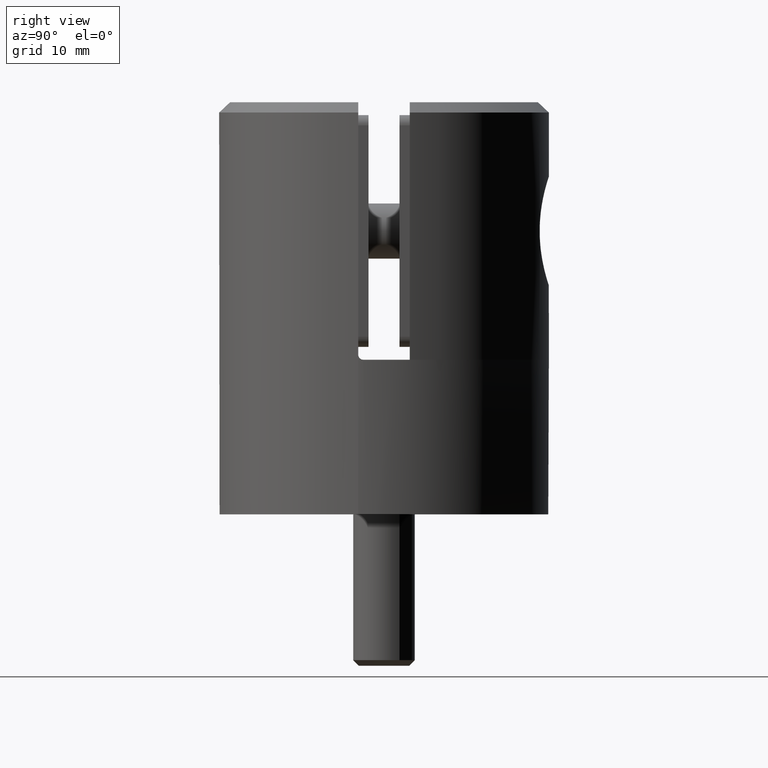
[diagram: clean part render]
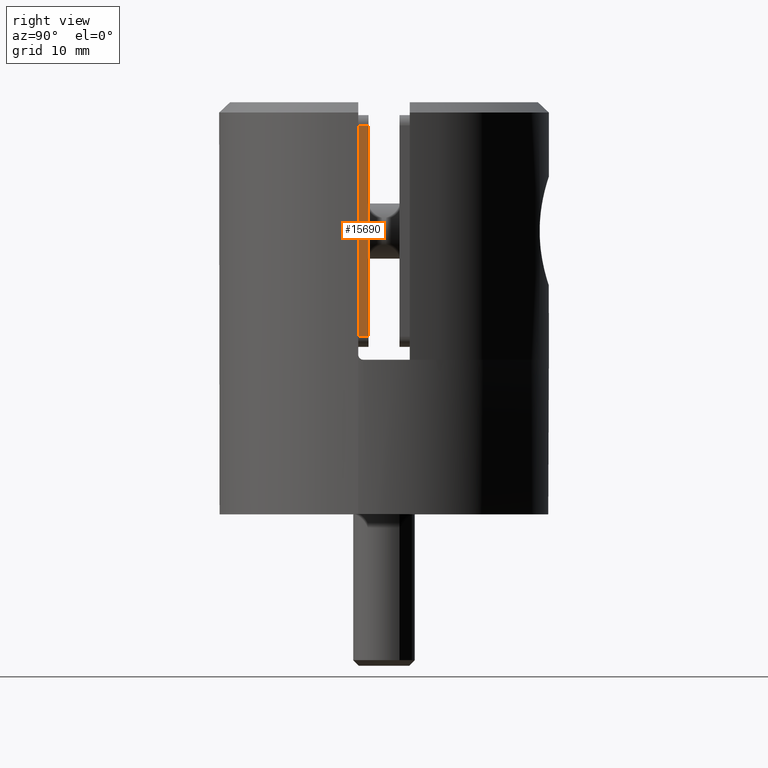
[diagram: same view with one face highlighted and labeled with its STEP entity id]
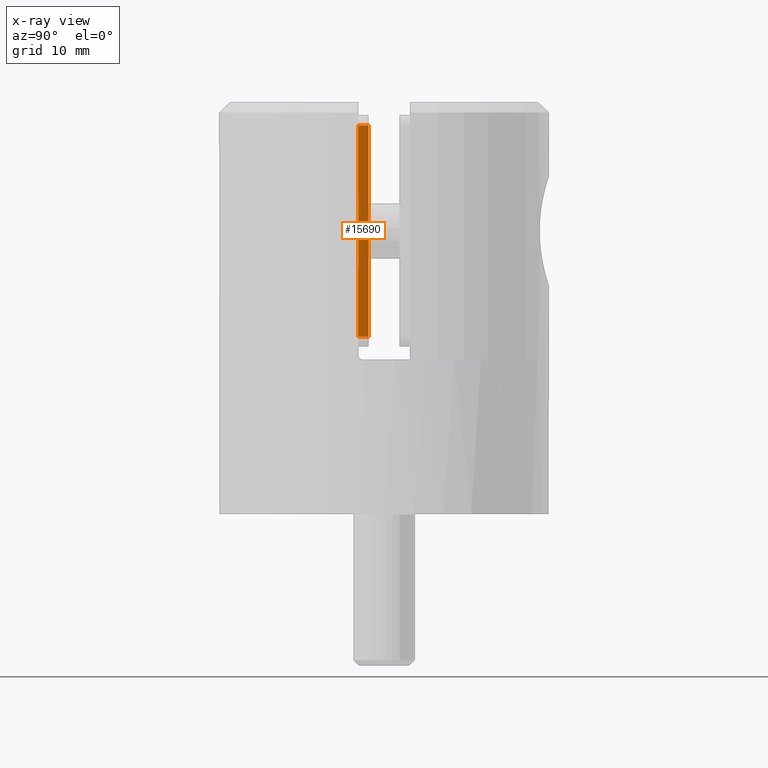
[diagram: x-ray of the same camera — body ghosted, the highlighted face saturated]
A machine part, right view. The second image highlights one B-rep face of the part: STEP entity #15690.
The next image is the same camera in x-ray: the body ghosted, the highlighted face saturated — about 0% of this face is hidden behind the body in this view.
In plain terms, the highlighted planar face has unit normal (-1, 0, -0).
Its self-contained STEP definition (entity closure, byte-faithful):
#1034 = CARTESIAN_POINT ( 'NONE',  ( -14.75000000000000000, 1.000000000000000000, 10.24999999999999822 ) ) ;
#1133 = LINE ( 'NONE', #1918, #14466 ) ;
#1153 = CARTESIAN_POINT ( 'NONE',  ( -14.75000000000000355, 1.000000000000000000, -10.24999999999999289 ) ) ;
#1590 = EDGE_CURVE ( 'NONE', #17785, #17684, #11062, .T. ) ;
#1645 = EDGE_CURVE ( 'NONE', #9091, #8863, #11771, .T. ) ;
#1918 = CARTESIAN_POINT ( 'NONE',  ( -14.75000000000000000, 1.000000000000000000, 11.24999999999999822 ) ) ;
#2743 = CARTESIAN_POINT ( 'NONE',  ( -14.75000000000000355, 0.000000000000000000, -10.24999999999998579 ) ) ;
#3113 = CARTESIAN_POINT ( 'NONE',  ( -14.75000000000000000, 0.000000000000000000, 11.24999999999999822 ) ) ;
#3540 = ORIENTED_EDGE ( 'NONE', *, *, #4423, .T. ) ;
#3647 = CARTESIAN_POINT ( 'NONE',  ( -14.75000000000000355, 1.000000000000000000, -10.24999999999998579 ) ) ;
#3932 = DIRECTION ( 'NONE',  ( -1.541976423090496373E-16, 0.000000000000000000, -1.000000000000000000 ) ) ;
#4157 = VECTOR ( 'NONE', #5808, 1000.000000000000000 ) ;
#4161 = DIRECTION ( 'NONE',  ( -0.000000000000000000, 1.000000000000000000, -0.000000000000000000 ) ) ;
#4370 = CARTESIAN_POINT ( 'NONE',  ( -14.75000000000000000, 1.000000000000000000, 10.24999999999999822 ) ) ;
#4423 = EDGE_CURVE ( 'NONE', #8863, #17785, #4931, .T. ) ;
#4625 = CARTESIAN_POINT ( 'NONE',  ( -14.75000000000000000, 0.000000000000000000, 10.24999999999999822 ) ) ;
#4917 = ORIENTED_EDGE ( 'NONE', *, *, #1590, .T. ) ;
#4931 = LINE ( 'NONE', #3113, #16371 ) ;
#5450 = ORIENTED_EDGE ( 'NONE', *, *, #1645, .T. ) ;
#5808 = DIRECTION ( 'NONE',  ( 0.000000000000000000, -1.000000000000000000, 0.000000000000000000 ) ) ;
#8863 = VERTEX_POINT ( 'NONE', #2743 ) ;
#9091 = VERTEX_POINT ( 'NONE', #3647 ) ;
#10710 = FACE_OUTER_BOUND ( 'NONE', #18970, .T. ) ;
#11062 = LINE ( 'NONE', #1034, #18924 ) ;
#11771 = LINE ( 'NONE', #1153, #4157 ) ;
#12271 = DIRECTION ( 'NONE',  ( 1.541976423090496126E-16, -0.000000000000000000, 1.000000000000000000 ) ) ;
#14466 = VECTOR ( 'NONE', #16975, 1000.000000000000000 ) ;
#15690 = ADVANCED_FACE ( 'NONE', ( #10710 ), #19030, .F. ) ;
#16371 = VECTOR ( 'NONE', #12271, 1000.000000000000000 ) ;
#16975 = DIRECTION ( 'NONE',  ( 1.541976423090496126E-16, -0.000000000000000000, 1.000000000000000000 ) ) ;
#17448 = CARTESIAN_POINT ( 'NONE',  ( -14.75000000000000000, 1.000000000000000000, 11.24999999999999822 ) ) ;
#17573 = DIRECTION ( 'NONE',  ( 1.000000000000000000, 0.000000000000000000, -1.541976423090496373E-16 ) ) ;
#17684 = VERTEX_POINT ( 'NONE', #4370 ) ;
#17785 = VERTEX_POINT ( 'NONE', #4625 ) ;
#17872 = ORIENTED_EDGE ( 'NONE', *, *, #18699, .F. ) ;
#18699 = EDGE_CURVE ( 'NONE', #9091, #17684, #1133, .T. ) ;
#18924 = VECTOR ( 'NONE', #4161, 1000.000000000000000 ) ;
#18970 = EDGE_LOOP ( 'NONE', ( #17872, #5450, #3540, #4917 ) ) ;
#19017 = AXIS2_PLACEMENT_3D ( 'NONE', #17448, #17573, #3932 ) ;
#19030 = PLANE ( 'NONE',  #19017 ) ;